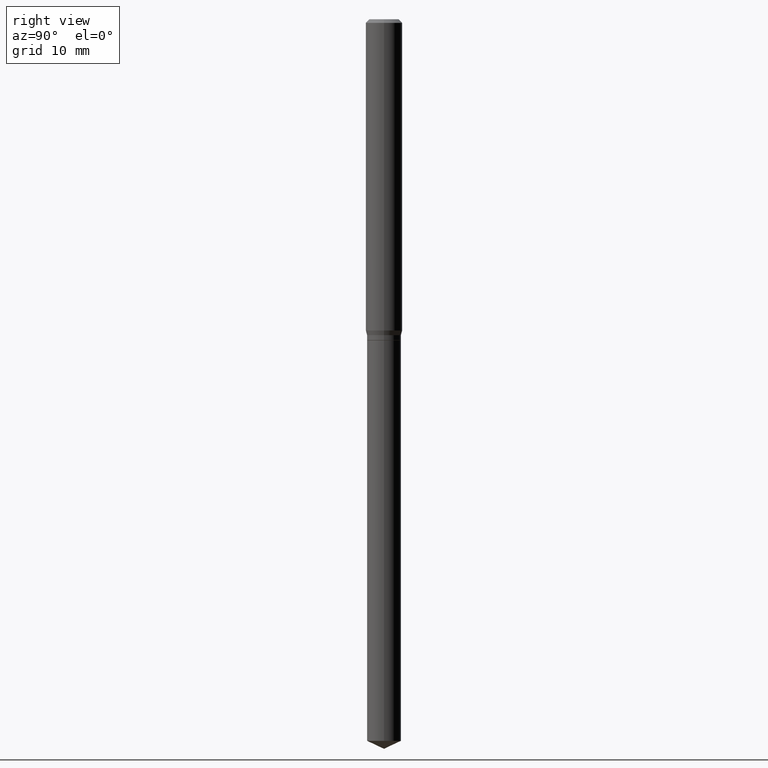
[diagram: clean part render]
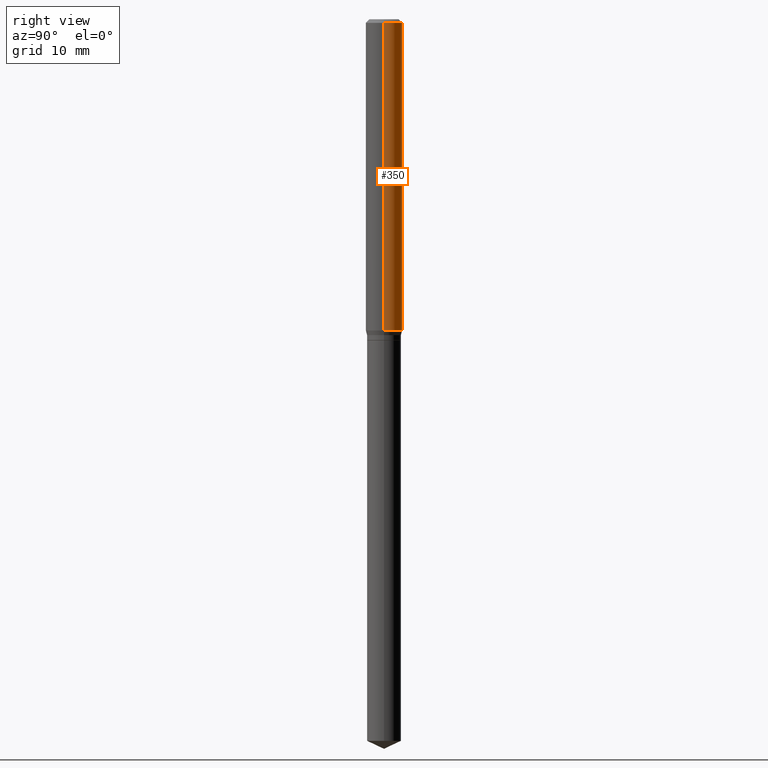
[diagram: same view with one face highlighted and labeled with its STEP entity id]
A machine part, right view. The second image highlights one B-rep face of the part: STEP entity #350.
In plain terms, the highlighted cylindrical surface (edge-blend (fillet) strip) has radius 1.4999 mm, axis along (-0, 0, 1).
Its self-contained STEP definition (entity closure, byte-faithful):
#7 = EDGE_CURVE ( 'NONE', #441, #477, #428, .T. ) ;
#13 = DIRECTION ( 'NONE',  ( -2.445468806185136597E-29, 3.491481338843145583E-15, 1.000000000000000000 ) ) ;
#28 = CARTESIAN_POINT ( 'NONE',  ( 2.888098660104663766E-31, -4.123439461173779647E-17, -0.01181000000000007044 ) ) ;
#47 = AXIS2_PLACEMENT_3D ( 'NONE', #201, #13, #466 ) ;
#55 = VERTEX_POINT ( 'NONE', #291 ) ;
#93 = CARTESIAN_POINT ( 'NONE',  ( -0.05904999999999999832, -1.360675682600244344E-15, -0.01181000000000007044 ) ) ;
#104 = VECTOR ( 'NONE', #347, 39.37007874015748143 ) ;
#113 = CIRCLE ( 'NONE', #313, 0.05905000000000011628 ) ;
#120 = EDGE_CURVE ( 'NONE', #55, #441, #113, .T. ) ;
#146 = VECTOR ( 'NONE', #281, 39.37007874015748143 ) ;
#158 = CYLINDRICAL_SURFACE ( 'NONE', #47, 0.05905000000000006077 ) ;
#169 = CARTESIAN_POINT ( 'NONE',  ( 0.05904999999999999832, -4.535783407291118600E-16, -0.01181000000000007044 ) ) ;
#201 = CARTESIAN_POINT ( 'NONE',  ( 0.000000000000000000, 0.000000000000000000, 0.000000000000000000 ) ) ;
#206 = FACE_OUTER_BOUND ( 'NONE', #244, .T. ) ;
#207 = ORIENTED_EDGE ( 'NONE', *, *, #120, .T. ) ;
#219 = CIRCLE ( 'NONE', #331, 0.05904999999999999832 ) ;
#244 = EDGE_LOOP ( 'NONE', ( #207, #364, #434, #247 ) ) ;
#247 = ORIENTED_EDGE ( 'NONE', *, *, #295, .F. ) ;
#265 = DIRECTION ( 'NONE',  ( -2.445468806185136597E-29, 3.491481338843145583E-15, 1.000000000000000000 ) ) ;
#280 = VERTEX_POINT ( 'NONE', #169 ) ;
#281 = DIRECTION ( 'NONE',  ( -2.445468806185136877E-29, 3.491481338843145188E-15, 1.000000000000000000 ) ) ;
#291 = CARTESIAN_POINT ( 'NONE',  ( 0.05905000000000011628, -3.931611887638806444E-15, -1.007958399310102893 ) ) ;
#292 = DIRECTION ( 'NONE',  ( -2.445468806185136597E-29, 3.491481338843145583E-15, 1.000000000000000000 ) ) ;
#295 = EDGE_CURVE ( 'NONE', #55, #280, #465, .T. ) ;
#313 = AXIS2_PLACEMENT_3D ( 'NONE', #423, #265, #453 ) ;
#316 = CARTESIAN_POINT ( 'NONE',  ( 0.05905000000000006077, -4.123439461173744764E-16, 2.879382386107503023E-30 ) ) ;
#331 = AXIS2_PLACEMENT_3D ( 'NONE', #28, #292, #486 ) ;
#332 = CARTESIAN_POINT ( 'NONE',  ( -0.05905000000000006077, 4.195754854663395916E-16, -2.904631170795524694E-30 ) ) ;
#347 = DIRECTION ( 'NONE',  ( -2.445468806185136877E-29, 3.491481338843145188E-15, 1.000000000000000000 ) ) ;
#350 = ADVANCED_FACE ( 'NONE', ( #206 ), #158, .T. ) ;
#364 = ORIENTED_EDGE ( 'NONE', *, *, #7, .T. ) ;
#385 = EDGE_CURVE ( 'NONE', #280, #477, #219, .T. ) ;
#409 = CARTESIAN_POINT ( 'NONE',  ( -0.05905000000000011628, -3.099692456055091636E-15, -1.007958399310102893 ) ) ;
#423 = CARTESIAN_POINT ( 'NONE',  ( 2.464930823445158340E-29, -3.519267941521431524E-15, -1.007958399310102893 ) ) ;
#428 = LINE ( 'NONE', #332, #104 ) ;
#434 = ORIENTED_EDGE ( 'NONE', *, *, #385, .F. ) ;
#441 = VERTEX_POINT ( 'NONE', #409 ) ;
#453 = DIRECTION ( 'NONE',  ( 1.000000000000000000, -6.982962677686266711E-15, 0.000000000000000000 ) ) ;
#465 = LINE ( 'NONE', #316, #146 ) ;
#466 = DIRECTION ( 'NONE',  ( 1.000000000000000000, -6.982962677686266711E-15, 4.876176775795935793E-29 ) ) ;
#477 = VERTEX_POINT ( 'NONE', #93 ) ;
#486 = DIRECTION ( 'NONE',  ( 1.000000000000000000, -6.982962677686266711E-15, 0.000000000000000000 ) ) ;